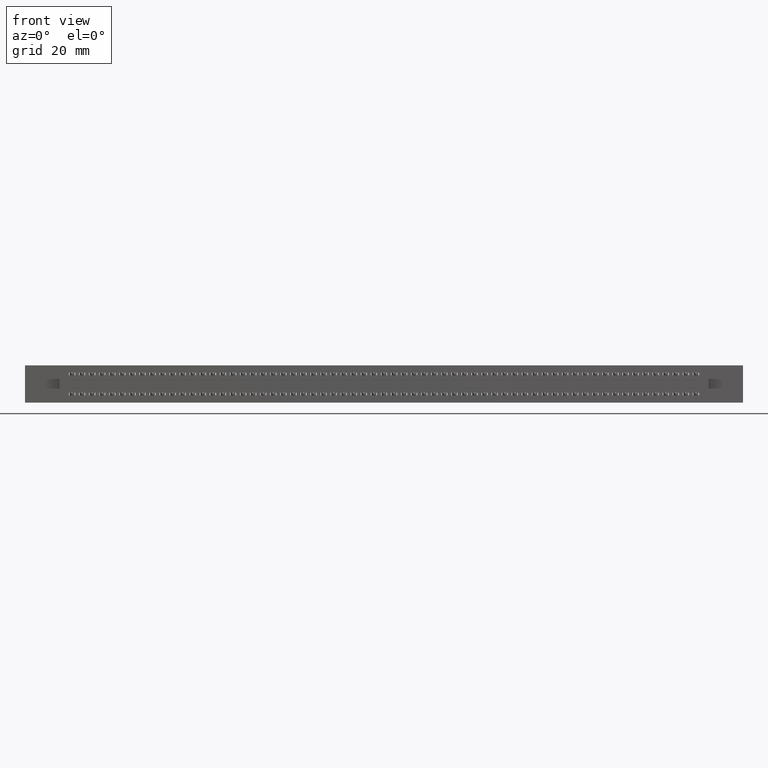
[diagram: clean part render]
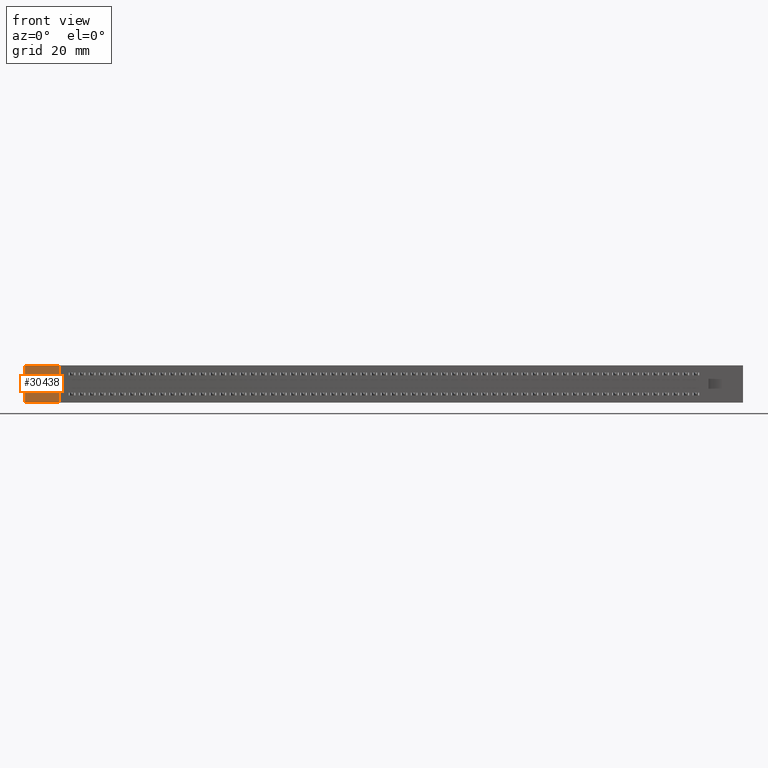
[diagram: same view with one face highlighted and labeled with its STEP entity id]
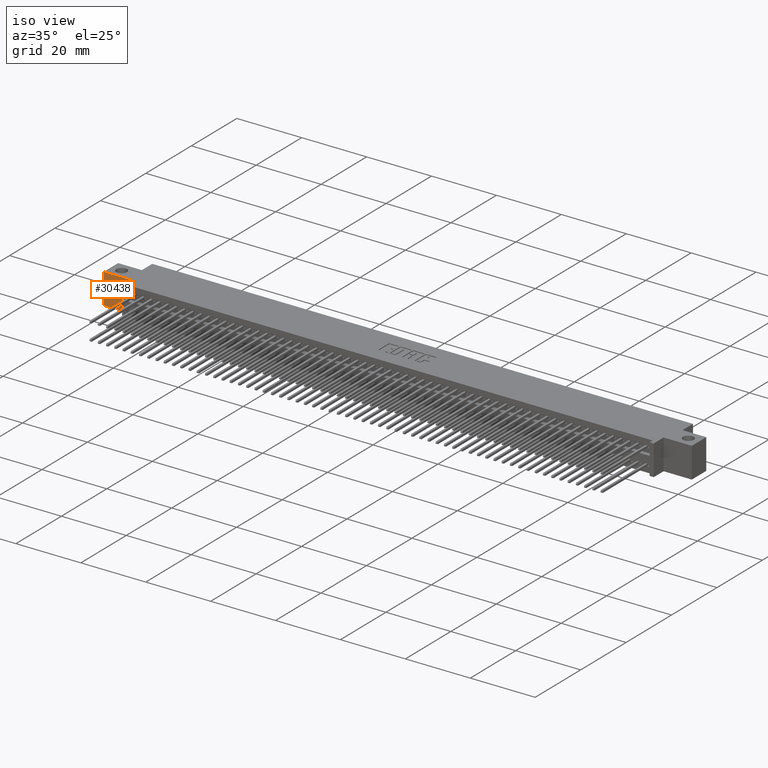
[diagram: same view with one face highlighted and labeled with its STEP entity id]
A machine part, front view. The second image highlights one B-rep face of the part: STEP entity #30438.
A second angle (iso view) of the same face is appended — the face is thin or edge-on in the first view.
In plain terms, the highlighted planar face has unit normal (0, -1, 0).
Its self-contained STEP definition (entity closure, byte-faithful):
#454 = LINE ( 'NONE', #34408, #27525 ) ;
#2306 = VERTEX_POINT ( 'NONE', #7416 ) ;
#2863 = DIRECTION ( 'NONE',  ( -1.000000000000000000, -0.0000000000000000000, -0.0000000000000000000 ) ) ;
#3867 = PLANE ( 'NONE',  #29526 ) ;
#7416 = CARTESIAN_POINT ( 'NONE',  ( 0.3424999999999999700, 0.1699999999999999800, 0.0000000000000000000 ) ) ;
#7618 = DIRECTION ( 'NONE',  ( 0.0000000000000000000, -0.0000000000000000000, -1.000000000000000000 ) ) ;
#12127 = ORIENTED_EDGE ( 'NONE', *, *, #17046, .T. ) ;
#15254 = EDGE_LOOP ( 'NONE', ( #18938, #44881, #12127, #24147 ) ) ;
#17046 = EDGE_CURVE ( 'NONE', #35915, #2306, #33903, .T. ) ;
#18176 = EDGE_CURVE ( 'NONE', #31346, #42316, #31532, .T. ) ;
#18558 = EDGE_CURVE ( 'NONE', #42316, #35915, #454, .T. ) ;
#18681 = CARTESIAN_POINT ( 'NONE',  ( 0.0000000000000000000, 0.1699999999999999800, -0.3700000000000001600 ) ) ;
#18938 = ORIENTED_EDGE ( 'NONE', *, *, #18176, .T. ) ;
#21683 = DIRECTION ( 'NONE',  ( 0.0000000000000000000, -1.000000000000000000, 0.0000000000000000000 ) ) ;
#23230 = EDGE_CURVE ( 'NONE', #2306, #31346, #45024, .T. ) ;
#24147 = ORIENTED_EDGE ( 'NONE', *, *, #23230, .T. ) ;
#27525 = VECTOR ( 'NONE', #45568, 39.37007874015748100 ) ;
#29211 = DIRECTION ( 'NONE',  ( 0.0000000000000000000, 0.0000000000000000000, -1.000000000000000000 ) ) ;
#29526 = AXIS2_PLACEMENT_3D ( 'NONE', #39909, #21683, #7618 ) ;
#30177 = CARTESIAN_POINT ( 'NONE',  ( 0.3424999999999999700, 0.1699999999999999800, -0.3700000000000000000 ) ) ;
#30427 = CARTESIAN_POINT ( 'NONE',  ( 0.0000000000000000000, 0.1699999999999999800, 0.0000000000000000000 ) ) ;
#30438 = ADVANCED_FACE ( 'NONE', ( #37770 ), #3867, .T. ) ;
#31346 = VERTEX_POINT ( 'NONE', #30427 ) ;
#31532 = LINE ( 'NONE', #33022, #38946 ) ;
#33022 = CARTESIAN_POINT ( 'NONE',  ( 0.0000000000000000000, 0.1699999999999999800, 0.0000000000000000000 ) ) ;
#33903 = LINE ( 'NONE', #46257, #39039 ) ;
#34408 = CARTESIAN_POINT ( 'NONE',  ( 0.0000000000000000000, 0.1699999999999999800, -0.3700000000000001600 ) ) ;
#35210 = CARTESIAN_POINT ( 'NONE',  ( 0.0000000000000000000, 0.1699999999999999800, 0.0000000000000000000 ) ) ;
#35915 = VERTEX_POINT ( 'NONE', #30177 ) ;
#37770 = FACE_OUTER_BOUND ( 'NONE', #15254, .T. ) ;
#38220 = VECTOR ( 'NONE', #2863, 39.37007874015748100 ) ;
#38631 = DIRECTION ( 'NONE',  ( -0.0000000000000000000, -0.0000000000000000000, 1.000000000000000000 ) ) ;
#38946 = VECTOR ( 'NONE', #29211, 39.37007874015748100 ) ;
#39039 = VECTOR ( 'NONE', #38631, 39.37007874015748100 ) ;
#39909 = CARTESIAN_POINT ( 'NONE',  ( 0.0000000000000000000, 0.1699999999999999800, -0.3700000000000001600 ) ) ;
#42316 = VERTEX_POINT ( 'NONE', #18681 ) ;
#44881 = ORIENTED_EDGE ( 'NONE', *, *, #18558, .T. ) ;
#45024 = LINE ( 'NONE', #35210, #38220 ) ;
#45568 = DIRECTION ( 'NONE',  ( 1.000000000000000000, 0.0000000000000000000, 3.988099260823742800E-016 ) ) ;
#46257 = CARTESIAN_POINT ( 'NONE',  ( 0.3424999999999999700, 0.1699999999999999800, 0.0000000000000000000 ) ) ;